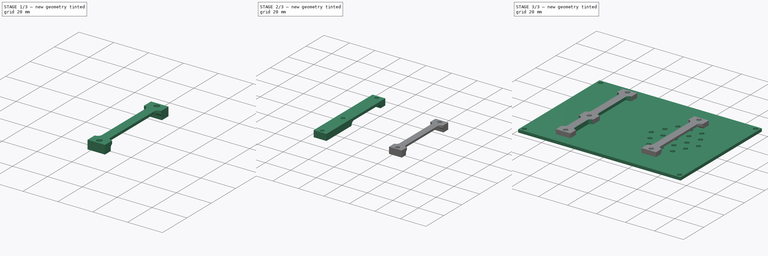
[diagram: build sequence overview — one tinted view per stage of 3, left to right]
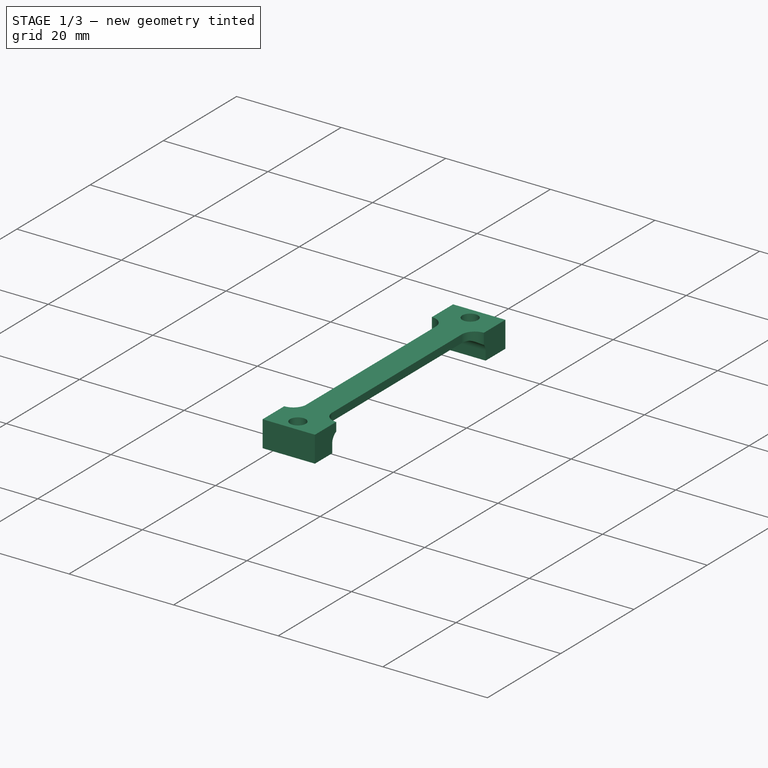
[diagram: stage 1 of 3 — iso view after this stage's code; geometry added in this stage tinted green]
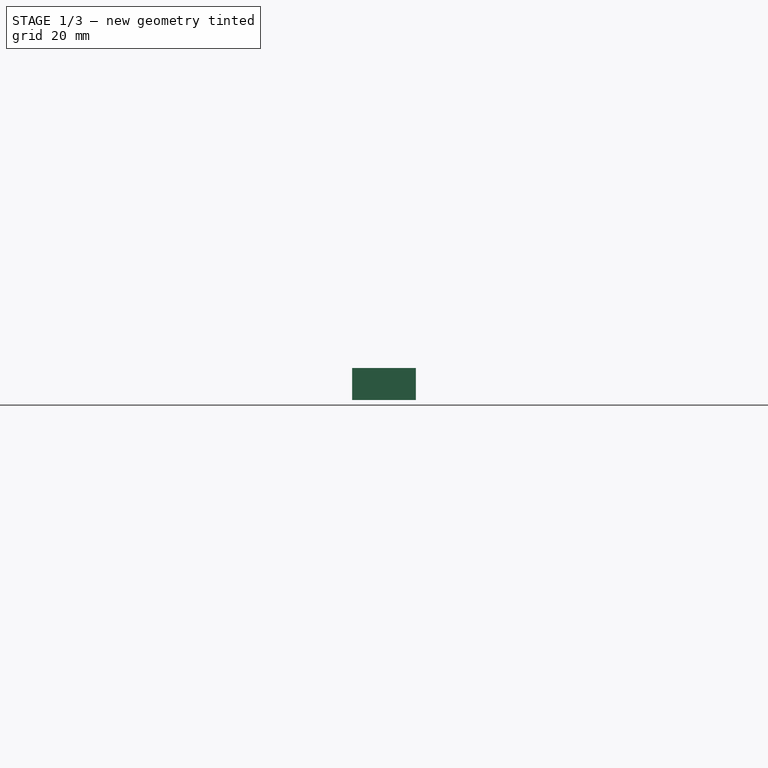
[diagram: stage 1 of 3 — front view after this stage's code; geometry added in this stage tinted green]
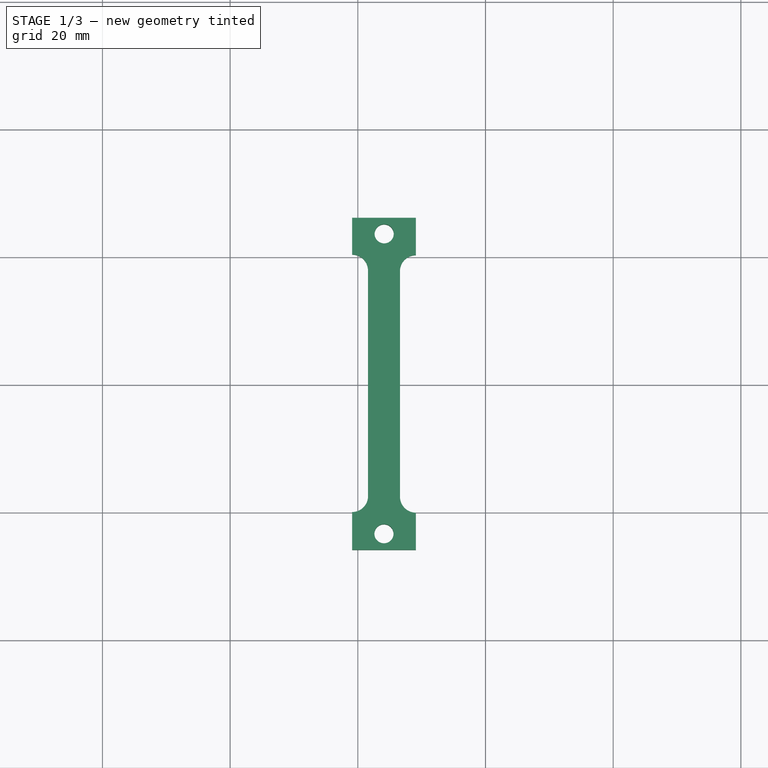
[diagram: stage 1 of 3 — top view after this stage's code; geometry added in this stage tinted green]
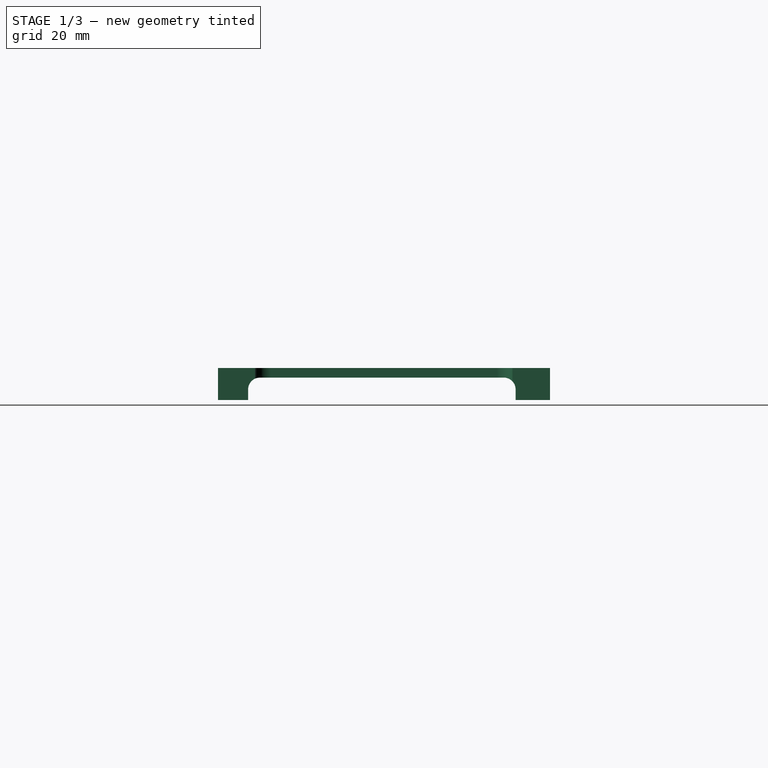
[diagram: stage 1 of 3 — right view after this stage's code; geometry added in this stage tinted green]
FCSTD DOCUMENT  (FreeCAD 0.18R16131 (Git))
Label: horloge boite
License: All rights reserved
LicenseURL: http://en.wikipedia.org/wiki/All_rights_reserved
objects: Sketcher::SketchObject×10, PartDesign::Pad×4, PartDesign::Plane×4, PartDesign::Pocket×4, PartDesign::Body×3
note: 33 computed .brp shape members not serialized (recipe doc carries the construction recipe); baked Part::Feature solids carry a one-line shape summary decoded from their .brp

FEATURE [PartDesign::Body] Body001  label="Serrage"
  Group = -> [Sketch004,Pad002,DatumPlane,Sketch005,Pocket,DatumPlane001,Sketch006,Pocket001]
  Origin = -> Origin001
  Placement = pos=(0,0,4) rot=(0,0,1;0rad)
  Tip = -> Pocket001
FEATURE [Sketcher::SketchObject] Sketch007
  MapMode = 5
  Support = -> [XY_Plane002]
  sketch-geometry (6):
    g0: LineSegment StartX=19.1 StartY=26.1584 StartZ=0 EndX=29.1 EndY=26.1584 EndZ=0
    g1: LineSegment StartX=29.1 StartY=26.1584 StartZ=0 EndX=29.1 EndY=-25.8416 EndZ=0
    g2: LineSegment StartX=29.1 StartY=-25.8416 StartZ=0 EndX=19.1 EndY=-25.8416 EndZ=0
    g3: LineSegment StartX=19.1 StartY=-25.8416 StartZ=0 EndX=19.1 EndY=26.1584 EndZ=0
    g4: Circle CenterX=24.1247 CenterY=23.6472 CenterZ=0 NormalX=0 NormalY=0 NormalZ=1 AngleXU=0 Radius=1.5
    g5: Circle CenterX=24.0947 CenterY=-23.3311 CenterZ=0 NormalX=0 NormalY=0 NormalZ=1 AngleXU=0 Radius=1.5
  constraints (13):
    c: Coincident(g0,g1)
    c: Coincident(g1,g2)
    c: Coincident(g2,g3)
    c: Coincident(g3,g0)
    c: Horizontal(g0)
    c: Horizontal(g2)
    c: Vertical(g1)
    c: Vertical(g3)
    c: DistanceX(g0,g0) = 10
    c: DistanceX(g-1,g0) = 19.1
    c: DistanceY(g1,g1) = 52
    c: Diameter(g4) = 3
    c: Equal(g4,g5) = 3
FEATURE [PartDesign::Pad] Pad003
  Length = 5
  Length2 = 100
  Profile = -> Sketch007
  Type = 0
FEATURE [PartDesign::Plane] DatumPlane002
  Length = 58.4498
  MapMode = 5
  Placement = pos=(19.1,0,0) rot=(0.57735,-0.57735,-0.57735;2.0944rad)
  ResizeMode = 0
  Support = -> [Pad003]
  Width = 26.4498
FEATURE [Sketcher::SketchObject] Sketch008
  MapMode = 5
  Placement = pos=(19.1,0,0) rot=(0.57735,-0.57735,-0.57735;2.0944rad)
  Support = -> [DatumPlane002]
  sketch-geometry (6):
    g0: LineSegment StartX=-18.9232 StartY=3.5 StartZ=0 EndX=19.2728 EndY=3.5 EndZ=0
    g1: LineSegment StartX=21.1253 StartY=1.64752 StartZ=0 EndX=21.1253 EndY=0 EndZ=0
    g2: LineSegment StartX=21.1253 StartY=0 StartZ=0 EndX=-20.7747 EndY=0 EndZ=0
    g3: LineSegment StartX=-20.7747 StartY=0 StartZ=0 EndX=-20.7747 EndY=1.6485 EndZ=0
    g4: ArcOfCircle CenterX=-18.9232 CenterY=1.6485 CenterZ=0 NormalX=0 NormalY=0 NormalZ=1 AngleXU=0 Radius=1.8515 StartAngle=1.5708 EndAngle=3.14159
    g5: ArcOfCircle CenterX=19.2728 CenterY=1.64752 CenterZ=0 NormalX=0 NormalY=0 NormalZ=1 AngleXU=0 Radius=1.85248 StartAngle=-1.004e-13 EndAngle=1.5708
  constraints (13):
    c: Coincident(g1,g2)
    c: Coincident(g2,g3)
    c: Horizontal(g0)
    c: Horizontal(g2)
    c: Vertical(g1)
    c: Vertical(g3)
    c: PointOnObject(g-1,g2)
    c: DistanceX(g2,g2) = 41.9
    c: Tangent(g0,g4) = 1.5708
    c: Tangent(g3,g4) = 1.5708
    c: Tangent(g0,g5) = 1.5708
    c: Tangent(g1,g5) = 1.5708
    c: DistanceY(g1,g0) = 3.5
FEATURE [PartDesign::Pocket] Pocket002
  BaseFeature = -> Pad003
  Length = 5
  Length2 = 100
  Profile = -> Sketch008
  Type = 1
FEATURE [PartDesign::Plane] DatumPlane003
  Length = 48.1182
  MapMode = 5
  Placement = pos=(0,0,5) rot=(0,0,1;0rad)
  ResizeMode = 0
  Support = -> [Pocket002]
  Width = 61.0182
FEATURE [Sketcher::SketchObject] Sketch009
  MapMode = 5
  Placement = pos=(0,0,5) rot=(0,0,1;0rad)
  Support = -> [DatumPlane003]
  sketch-geometry (10):
    g0: ArcOfCircle CenterX=19.1 CenterY=17.8795 CenterZ=0 NormalX=0 NormalY=0 NormalZ=1 AngleXU=0 Radius=2.5 StartAngle=2e-16 EndAngle=3.14159
    g1: ArcOfCircle CenterX=19.1 CenterY=-17.4462 CenterZ=0 NormalX=0 NormalY=0 NormalZ=1 AngleXU=0 Radius=2.5 StartAngle=3.14159 EndAngle=6.28319
    g2: LineSegment StartX=16.6 StartY=17.8795 StartZ=0 EndX=16.6 EndY=-17.4462 EndZ=0
    g3: LineSegment StartX=21.6 StartY=17.8795 StartZ=0 EndX=21.6 EndY=-17.4462 EndZ=0
    g4: LineSegment [constr] StartX=19.1 StartY=30.4729 StartZ=0 EndX=19.1 EndY=-27.6405 EndZ=0
    g5: LineSegment [constr] StartX=29.1 StartY=34.9332 StartZ=0 EndX=29.1 EndY=-28.2579 EndZ=0
    g6: ArcOfCircle CenterX=29.1 CenterY=17.7889 CenterZ=0 NormalX=0 NormalY=0 NormalZ=1 AngleXU=0 Radius=2.5 StartAngle=2e-16 EndAngle=3.14159
    g7: ArcOfCircle CenterX=29.1 CenterY=-17.5368 CenterZ=0 NormalX=0 NormalY=0 NormalZ=1 AngleXU=0 Radius=2.5 StartAngle=3.14159 EndAngle=6.28319
    g8: LineSegment StartX=26.6 StartY=17.7889 StartZ=0 EndX=26.6 EndY=-17.5368 EndZ=0
    g9: LineSegment StartX=31.6 StartY=17.7889 StartZ=0 EndX=31.6 EndY=-17.5368 EndZ=0
  constraints (20):
    c: Tangent(g0,g3) = 1.5708
    c: Tangent(g0,g2) = -1.5708
    c: Tangent(g2,g1) = -1.5708
    c: Tangent(g3,g1) = 1.5708
    c: Vertical(g2)
    c: Equal(g0,g1)
    c: DistanceX(g0,g0) = 5
    c: Vertical(g4)
    c: DistanceX(g-1,g4) = 19.1
    c: Vertical(g5)
    c: DistanceX(g4,g5) = 10
    c: PointOnObject(g0,g4)
    c: Tangent(g6,g9) = 1.5708
    c: Tangent(g6,g8) = -1.5708
    c: Tangent(g8,g7) = -1.5708
    c: Tangent(g9,g7) = 1.5708
    c: Vertical(g8)
    c: Equal(g6,g7)
    c: Equal(g0,g6) = 5
    c: PointOnObject(g6,g5)
FEATURE [PartDesign::Pocket] Pocket003
  BaseFeature = -> Pocket002
  Length = 5
  Length2 = 100
  Profile = -> Sketch009
  Type = 1
FEATURE [PartDesign::Body] Body002  label="serage 2"
  Group = -> [Sketch007,Pad003,DatumPlane002,Sketch008,Pocket002,DatumPlane003,Sketch009,Pocket003]
  Origin = -> Origin002
  Placement = pos=(0,0,4) rot=(0,0,1;0rad)
  Tip = -> Pocket003
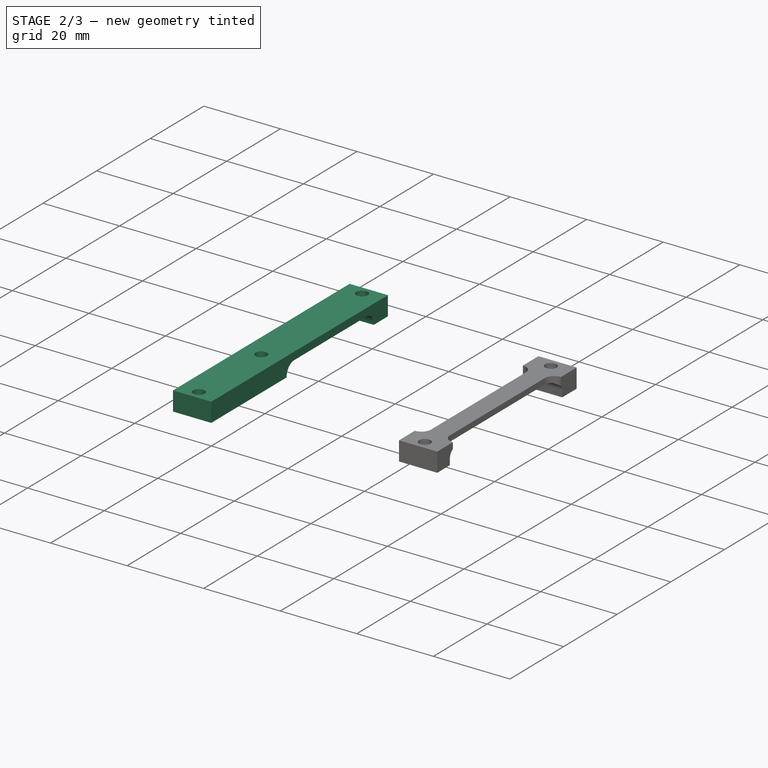
[diagram: stage 2 of 3 — iso view after this stage's code; geometry added in this stage tinted green]
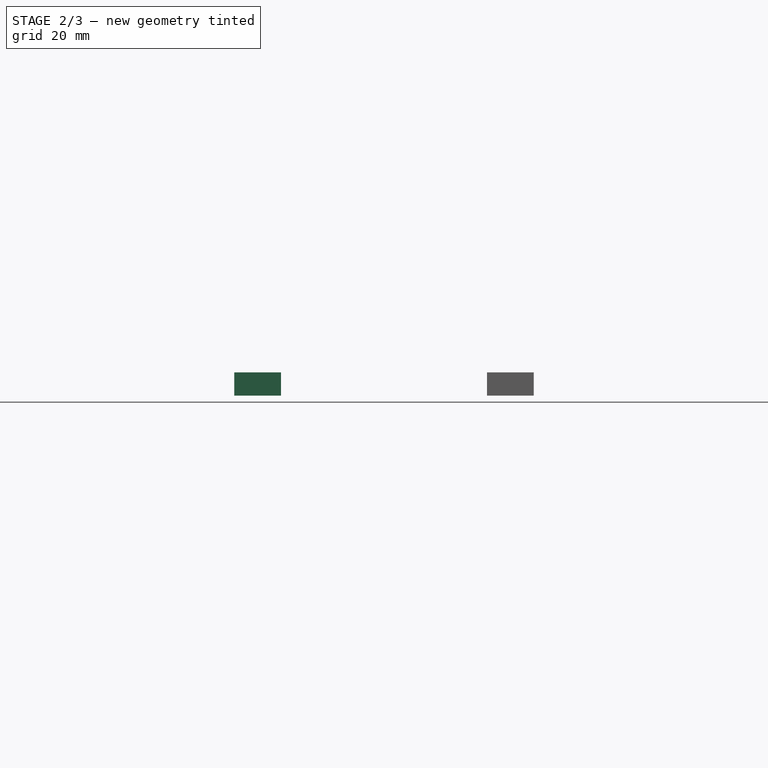
[diagram: stage 2 of 3 — front view after this stage's code; geometry added in this stage tinted green]
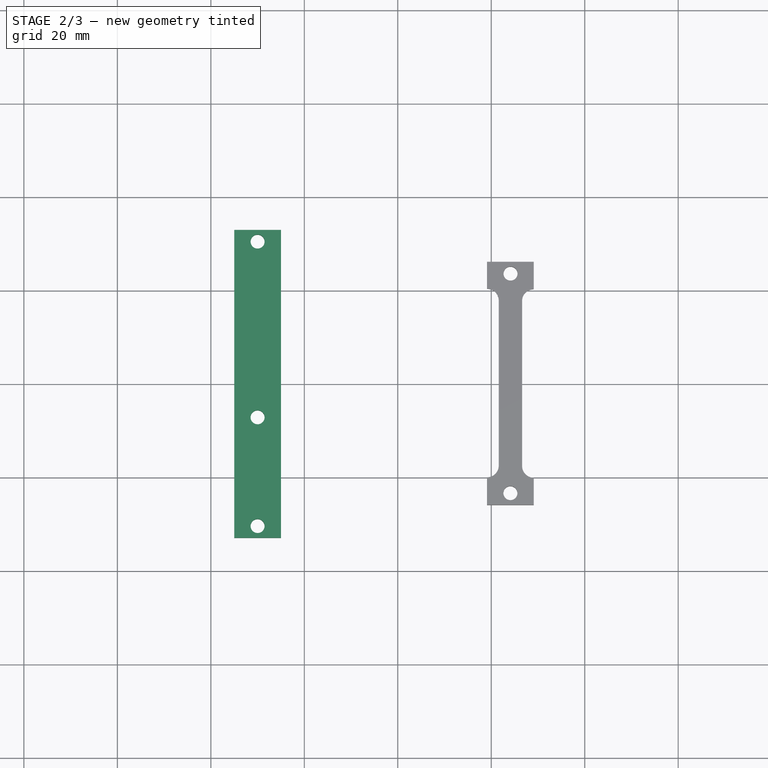
[diagram: stage 2 of 3 — top view after this stage's code; geometry added in this stage tinted green]
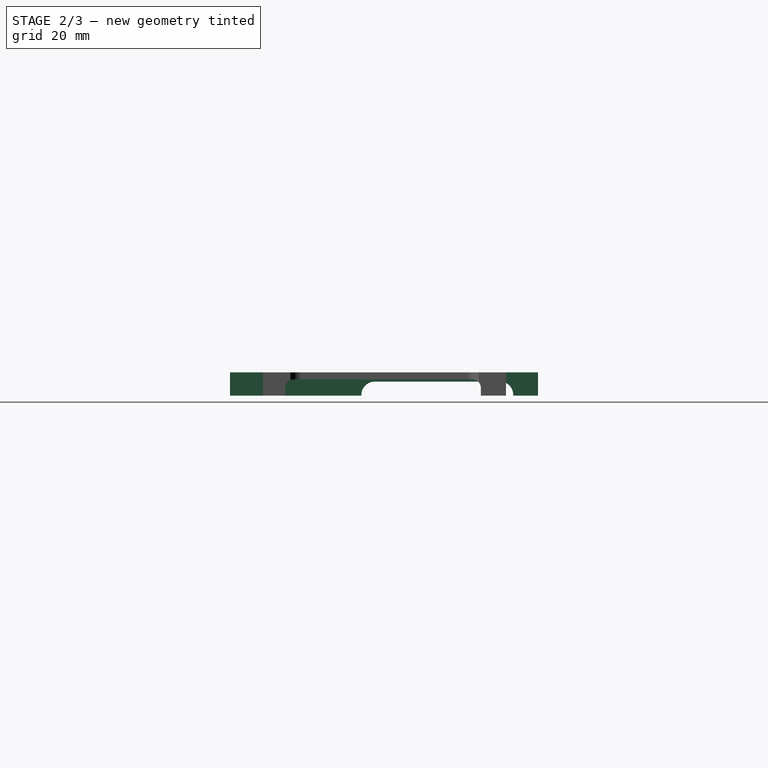
[diagram: stage 2 of 3 — right view after this stage's code; geometry added in this stage tinted green]
FEATURE [Sketcher::SketchObject] Sketch002
  AttachmentOffset = pos=(0,0,2) rot=(0,0,1;0rad)
  MapMode = 5
  Placement = pos=(0,0,2) rot=(0,0,1;0rad)
  Support = -> [XY_Plane]
  sketch-geometry (4):
    g0: LineSegment StartX=-51 StartY=34.5 StartZ=0 EndX=51 EndY=34.5 EndZ=0
    g1: LineSegment StartX=51 StartY=34.5 StartZ=0 EndX=51 EndY=-34.5 EndZ=0
    g2: LineSegment StartX=51 StartY=-34.5 StartZ=0 EndX=-51 EndY=-34.5 EndZ=0
    g3: LineSegment StartX=-51 StartY=-34.5 StartZ=0 EndX=-51 EndY=34.5 EndZ=0
  constraints (10):
    c: Coincident(g0,g1)
    c: Coincident(g1,g2)
    c: Coincident(g2,g3)
    c: Coincident(g3,g0)
    c: Horizontal(g2)
    c: Vertical(g3)
    c: DistanceX(g0,g0) = 102
    c: DistanceY(g1,g1) = 69
    c: Symmetric(g0,g0,g-2)
    c: Symmetric(g0,g1,g-1)
FEATURE [Sketcher::SketchObject] Sketch003  label="elements"
  AttachmentOffset = pos=(0,0,2) rot=(0,0,1;0rad)
  MapMode = 5
  Placement = pos=(0,0,2) rot=(0,0,1;0rad)
  Support = -> [XY_Plane]
  sketch-geometry (9):
    g0: LineSegment StartX=-37.9856 StartY=-10.0155 StartZ=0 EndX=-17.9856 EndY=-10.0155 EndZ=0
    g1: LineSegment StartX=-17.9856 StartY=-10.0155 StartZ=0 EndX=-17.9856 EndY=-27.0155 EndZ=0
    g2: LineSegment StartX=-17.9856 StartY=-27.0155 StartZ=0 EndX=-37.9856 EndY=-27.0155 EndZ=0
    g3: LineSegment StartX=-37.9856 StartY=-27.0155 StartZ=0 EndX=-37.9856 EndY=-10.0155 EndZ=0
    g4: LineSegment StartX=-49.1089 StartY=27.4845 StartZ=0 EndX=-9.10894 EndY=27.4845 EndZ=0
    g5: LineSegment StartX=-9.10894 StartY=27.4845 StartZ=0 EndX=-9.10894 EndY=-4.01552 EndZ=0
    g6: LineSegment StartX=-9.10894 StartY=-4.01552 StartZ=0 EndX=-49.1089 EndY=-4.01552 EndZ=0
    g7: LineSegment StartX=-49.1089 StartY=-4.01552 StartZ=0 EndX=-49.1089 EndY=27.4845 EndZ=0
    g8: Circle CenterX=23.8642 CenterY=0 CenterZ=0 NormalX=0 NormalY=0 NormalZ=1 AngleXU=0 Radius=20
  constraints (23):
    c: Coincident(g0,g1)
    c: Coincident(g1,g2)
    c: Coincident(g2,g3)
    c: Coincident(g3,g0)
    c: Horizontal(g0)
    c: Horizontal(g2)
    c: Vertical(g1)
    c: Vertical(g3)
    c: DistanceX(g0,g0) = 20
    c: DistanceY(g1,g1) = 17
    c: Coincident(g4,g5)
    c: Coincident(g5,g6)
    c: Coincident(g6,g7)
    c: Coincident(g7,g4)
    c: Horizontal(g4)
    c: Horizontal(g6)
    c: Vertical(g5)
    c: Vertical(g7)
    c: DistanceX(g4,g4) = 40
    c: DistanceY(g5,g5) = 31.5
    c: Diameter(g8) = 40
    c: PointOnObject(g8,g-1)
    c: DistanceY(g0,g5) = 6
FEATURE [PartDesign::Body] Body
  Group = -> [Sketch,Pad,Sketch001,Pad001,Sketch002,Sketch003]
  Origin = -> Origin
  Tip = -> Pad001
FEATURE [Sketcher::SketchObject] Sketch004
  MapMode = 5
  Support = -> [XY_Plane001]
  sketch-geometry (8):
    g0: LineSegment StartX=-35 StartY=32.9929 StartZ=0 EndX=-25 EndY=32.9929 EndZ=0
    g1: LineSegment StartX=-25 StartY=32.9929 StartZ=0 EndX=-25 EndY=-32.8858 EndZ=0
    g2: LineSegment StartX=-25 StartY=-32.8858 StartZ=0 EndX=-35 EndY=-32.8858 EndZ=0
    g3: LineSegment StartX=-35 StartY=-32.8858 StartZ=0 EndX=-35 EndY=32.9929 EndZ=0
    g4: Circle CenterX=-30 CenterY=30.4929 CenterZ=0 NormalX=0 NormalY=0 NormalZ=1 AngleXU=0 Radius=1.5
    g5: Circle CenterX=-30 CenterY=-7.10542 CenterZ=0 NormalX=0 NormalY=0 NormalZ=1 AngleXU=0 Radius=1.5
    g6: LineSegment [constr] StartX=-30 StartY=45.8495 StartZ=0 EndX=-30 EndY=-41.5599 EndZ=0
    g7: Circle CenterX=-30 CenterY=-30.3742 CenterZ=0 NormalX=0 NormalY=0 NormalZ=1 AngleXU=0 Radius=1.5
  constraints (19):
    c: Coincident(g0,g1)
    c: Coincident(g1,g2)
    c: Coincident(g2,g3)
    c: Coincident(g3,g0)
    c: Horizontal(g0)
    c: Horizontal(g2)
    c: Vertical(g1)
    c: Vertical(g3)
    c: DistanceX(g0,g0) = 10
    c: Diameter(g4) = 3
    c: DistanceX(g0,g4) = 5
    c: DistanceY(g4,g0) = 2.5
    c: Equal(g4,g5) = 3
    c: Vertical(g6)
    c: PointOnObject(g4,g6)
    c: PointOnObject(g5,g6)
    c: DistanceX(g0,g-1) = 25
    c: PointOnObject(g7,g6)
    c: Diameter(g7) = 3
FEATURE [PartDesign::Pad] Pad002
  Length = 5
  Length2 = 100
  Profile = -> Sketch004
  Type = 0
FEATURE [PartDesign::Plane] DatumPlane
  Length = 73.1384
  MapMode = 5
  Placement = pos=(-35,0,0) rot=(0.57735,-0.57735,-0.57735;2.0944rad)
  ResizeMode = 0
  Support = -> [Pad002]
  Width = 27.2597
FEATURE [Sketcher::SketchObject] Sketch005
  MapMode = 5
  Placement = pos=(-35,0,0) rot=(0.57735,-0.57735,-0.57735;2.0944rad)
  Support = -> [DatumPlane]
  sketch-geometry (7):
    g0: LineSegment StartX=-27.7 StartY=0 StartZ=0 EndX=4.8 EndY=0 EndZ=0
    g1: LineSegment StartX=4.8 StartY=0 StartZ=0 EndX=4.8 EndY=0.12222 EndZ=0
    g2: LineSegment StartX=1.92222 StartY=3 StartZ=0 EndX=-15.562 EndY=3 EndZ=0
    g3: ArcOfCircle CenterX=1.92222 CenterY=0.12222 CenterZ=0 NormalX=0 NormalY=0 NormalZ=1 AngleXU=0 Radius=2.87778 StartAngle=0 EndAngle=1.5708
    g4: LineSegment StartX=-27.7 StartY=0 StartZ=0 EndX=-27.7 EndY=0.2011 EndZ=0
    g5: LineSegment StartX=-24.9011 StartY=3 StartZ=0 EndX=-15.562 EndY=3 EndZ=0
    g6: ArcOfCircle CenterX=-24.9011 CenterY=0.2011 CenterZ=0 NormalX=0 NormalY=0 NormalZ=1 AngleXU=0 Radius=2.7989 StartAngle=1.5708 EndAngle=3.14159
  constraints (16):
    c: Coincident(g0,g1)
    c: Horizontal(g0)
    c: Horizontal(g2)
    c: Vertical(g1)
    c: PointOnObject(g0,g-1)
    c: Tangent(g2,g3) = -1.5708
    c: Tangent(g1,g3) = -1.5708
    c: DistanceY(g0,g2) = 3
    c: DistanceX(g-1,g0) = 4.8
    c: DistanceX(g0,g-1) = 27.7
    c: Coincident(g0,g4)
    c: Vertical(g4)
    c: Horizontal(g5)
    c: Coincident(g5,g2)
    c: Tangent(g5,g6) = 1.5708
    c: Tangent(g4,g6) = 1.5708
FEATURE [PartDesign::Pocket] Pocket
  BaseFeature = -> Pad002
  Length = 5
  Length2 = 100
  Profile = -> Sketch005
  Type = 1
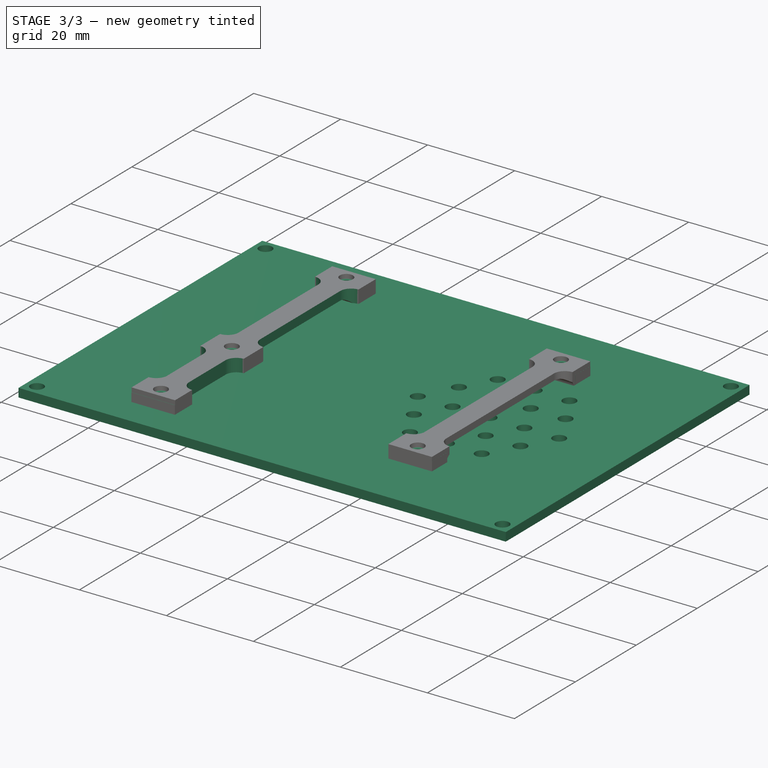
[diagram: stage 3 of 3 — iso view after this stage's code; geometry added in this stage tinted green]
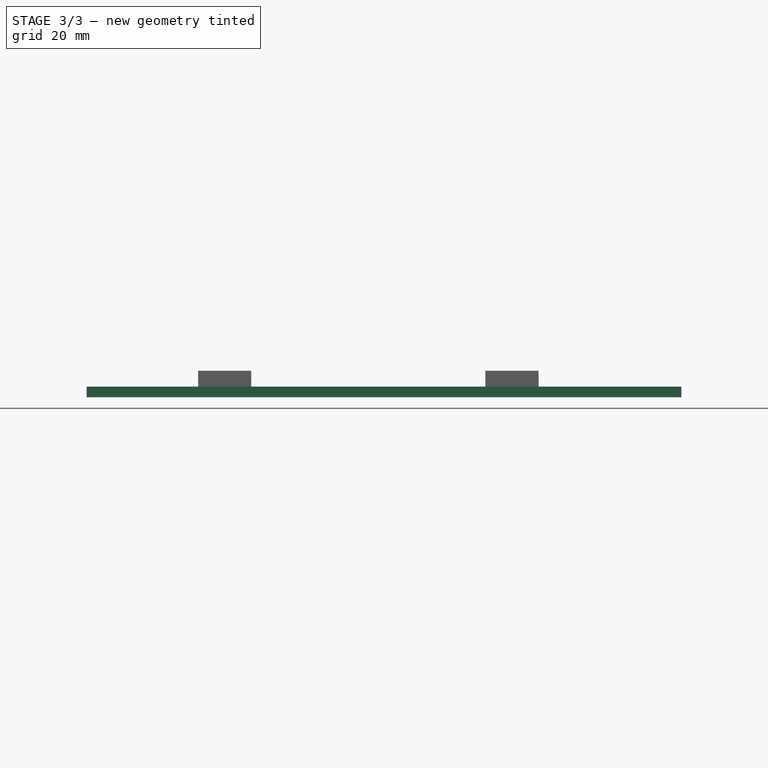
[diagram: stage 3 of 3 — front view after this stage's code; geometry added in this stage tinted green]
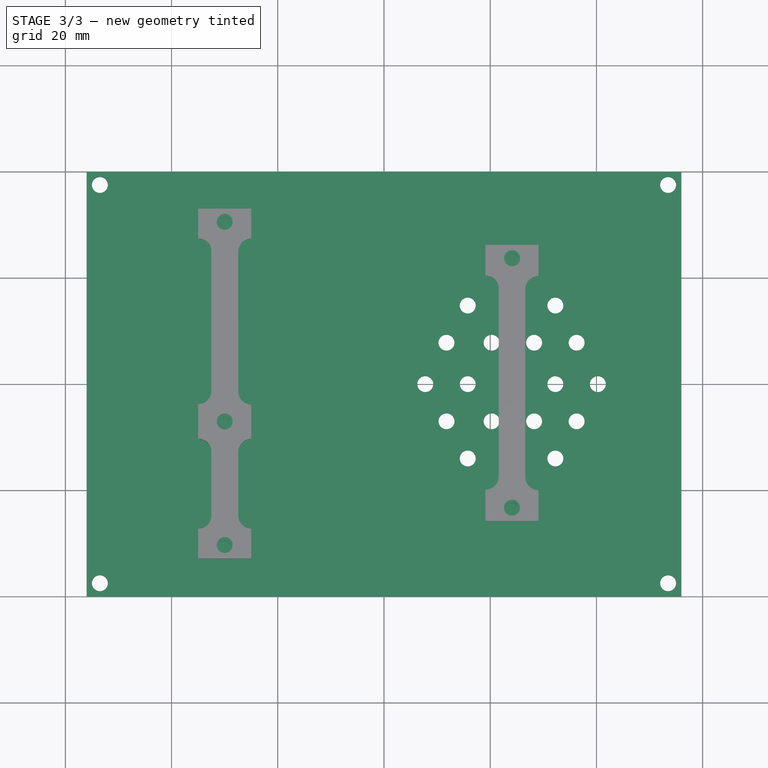
[diagram: stage 3 of 3 — top view after this stage's code; geometry added in this stage tinted green]
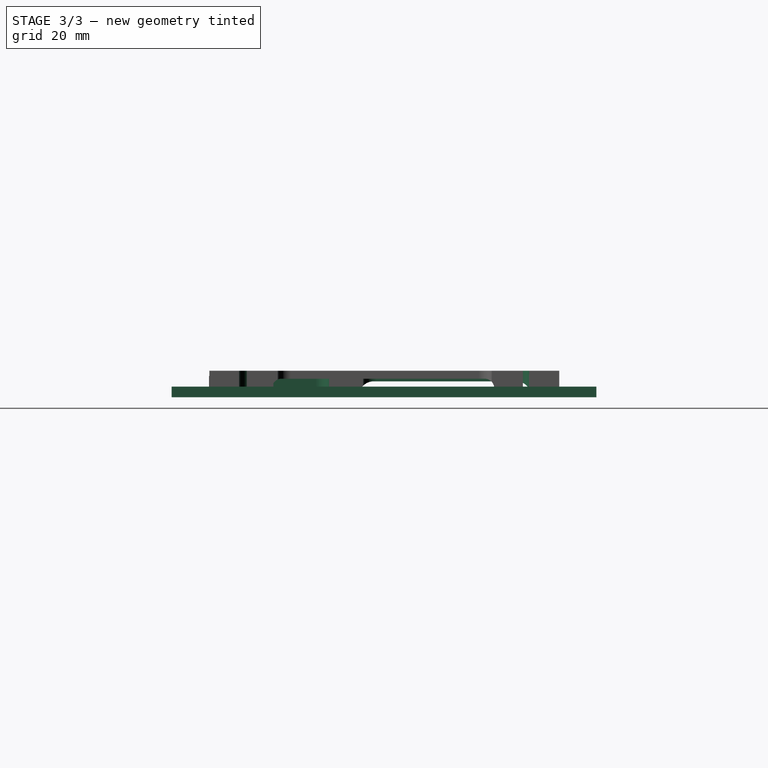
[diagram: stage 3 of 3 — right view after this stage's code; geometry added in this stage tinted green]
FEATURE [Sketcher::SketchObject] Sketch  label="fond"
  MapMode = 5
  Support = -> [XY_Plane]
  sketch-geometry (40):
    g0: LineSegment StartX=-56 StartY=40 StartZ=0 EndX=56 EndY=40 EndZ=0
    g1: LineSegment StartX=56 StartY=40 StartZ=0 EndX=56 EndY=-40 EndZ=0
    g2: LineSegment StartX=56 StartY=-40 StartZ=0 EndX=-56 EndY=-40 EndZ=0
    g3: LineSegment StartX=-56 StartY=-40 StartZ=0 EndX=-56 EndY=40 EndZ=0
    g4: Circle CenterX=-53.5 CenterY=37.5 CenterZ=0 NormalX=0 NormalY=0 NormalZ=1 AngleXU=0 Radius=1.5
    g5: Circle CenterX=53.5 CenterY=37.5 CenterZ=0 NormalX=0 NormalY=0 NormalZ=1 AngleXU=0 Radius=1.5
    g6: Circle CenterX=-53.5 CenterY=-37.5 CenterZ=0 NormalX=0 NormalY=0 NormalZ=1 AngleXU=0 Radius=1.5
    g7: Circle CenterX=53.5 CenterY=-37.5 CenterZ=0 NormalX=0 NormalY=0 NormalZ=1 AngleXU=0 Radius=1.5
    g8: Circle CenterX=7.76807 CenterY=0 CenterZ=0 NormalX=0 NormalY=0 NormalZ=1 AngleXU=0 Radius=1.5
    g9: Circle CenterX=15.7681 CenterY=0 CenterZ=0 NormalX=0 NormalY=0 NormalZ=1 AngleXU=0 Radius=1.5
    g10: Circle CenterX=32.2681 CenterY=0 CenterZ=0 NormalX=0 NormalY=0 NormalZ=1 AngleXU=0 Radius=1.5
    g11: Circle CenterX=24.2681 CenterY=0 CenterZ=0 NormalX=0 NormalY=0 NormalZ=1 AngleXU=0 Radius=1.5
    g12: Circle CenterX=40.2681 CenterY=0 CenterZ=0 NormalX=0 NormalY=0 NormalZ=1 AngleXU=0 Radius=1.5
    g13: Circle CenterX=36.2681 CenterY=7.8 CenterZ=0 NormalX=0 NormalY=0 NormalZ=1 AngleXU=0 Radius=1.5
    g14: Circle CenterX=11.7681 CenterY=7.8 CenterZ=0 NormalX=0 NormalY=0 NormalZ=1 AngleXU=0 Radius=1.5
    g15: Circle CenterX=28.2681 CenterY=7.8 CenterZ=0 NormalX=0 NormalY=0 NormalZ=1 AngleXU=0 Radius=1.5
    g16: Circle CenterX=20.2681 CenterY=7.8 CenterZ=0 NormalX=0 NormalY=0 NormalZ=1 AngleXU=0 Radius=1.5
    g17: Circle CenterX=32.2681 CenterY=14.8 CenterZ=0 NormalX=0 NormalY=0 NormalZ=1 AngleXU=0 Radius=1.5
    g18: Circle CenterX=24.2681 CenterY=14.8 CenterZ=0 NormalX=0 NormalY=0 NormalZ=1 AngleXU=0 Radius=1.5
    g19: Circle CenterX=15.7681 CenterY=14.8 CenterZ=0 NormalX=0 NormalY=0 NormalZ=1 AngleXU=0 Radius=1.5
    g20: LineSegment [constr] StartX=1.54998 StartY=14.8 StartZ=0 EndX=51.053 EndY=14.8 EndZ=0
    g21: LineSegment [constr] StartX=1.97399 StartY=7.8 StartZ=0 EndX=50.735 EndY=7.8 EndZ=0
    g22: Circle CenterX=36.2681 CenterY=-7 CenterZ=0 NormalX=0 NormalY=0 NormalZ=1 AngleXU=0 Radius=1.5
    g23: Circle CenterX=11.7681 CenterY=-7 CenterZ=0 NormalX=0 NormalY=0 NormalZ=1 AngleXU=0 Radius=1.5
    g24: Circle CenterX=28.2681 CenterY=-7 CenterZ=0 NormalX=0 NormalY=0 NormalZ=1 AngleXU=0 Radius=1.5
    g25: Circle CenterX=20.2681 CenterY=-7 CenterZ=0 NormalX=0 NormalY=0 NormalZ=1 AngleXU=0 Radius=1.5
    g26: LineSegment [constr] StartX=1.33798 StartY=-7 StartZ=0 EndX=50.0989 EndY=-7 EndZ=0
    g27: Circle CenterX=32.2681 CenterY=-14 CenterZ=0 NormalX=0 NormalY=0 NormalZ=1 AngleXU=0 Radius=1.5
    g28: Circle CenterX=24.2681 CenterY=-14 CenterZ=0 NormalX=0 NormalY=0 NormalZ=1 AngleXU=0 Radius=1.5
    g29: Circle CenterX=15.7681 CenterY=-14 CenterZ=0 NormalX=0 NormalY=0 NormalZ=1 AngleXU=0 Radius=1.5
    g30: LineSegment [constr] StartX=1.12597 StartY=-14 StartZ=0 EndX=50.629 EndY=-14 EndZ=0
    g31: LineSegment [constr] StartX=11.7681 StartY=25.2293 StartZ=0 EndX=11.7681 EndY=-26.9237 EndZ=0
    g32: LineSegment [constr] StartX=15.7681 StartY=26.1833 StartZ=0 EndX=15.7681 EndY=-27.1357 EndZ=0
    g33: LineSegment [constr] StartX=20.2681 StartY=26.0773 StartZ=0 EndX=20.2681 EndY=-27.7718 EndZ=0
    g34: LineSegment [constr] StartX=24.2681 StartY=25.9294 StartZ=0 EndX=24.2681 EndY=-28.2858 EndZ=0
    g35: LineSegment [constr] StartX=28.2681 StartY=26.2703 StartZ=0 EndX=28.2681 EndY=-27.8739 EndZ=0
    g36: LineSegment [constr] StartX=32.2681 StartY=25.5153 StartZ=0 EndX=32.2681 EndY=-28.1315 EndZ=0
    g37: LineSegment [constr] StartX=36.2681 StartY=25.9151 StartZ=0 EndX=36.2681 EndY=-27.8739 EndZ=0
    g38: LineSegment [constr] StartX=7.76807 StartY=25.371 StartZ=0 EndX=7.76807 EndY=-26.0731 EndZ=0
    g39: LineSegment [constr] StartX=40.2681 StartY=24.3052 StartZ=0 EndX=40.2681 EndY=-29.1285 EndZ=0
  constraints (93):
    c: Coincident(g0,g1)
    c: Coincident(g1,g2)
    c: Coincident(g2,g3)
    c: Coincident(g3,g0)
    c: Horizontal(g2)
    c: Vertical(g3)
    c: DistanceY(g3,g3) = 80
    c: DistanceX(g0,g0) = 112
    c: Symmetric(g0,g0,g-2)
    c: Symmetric(g0,g1,g-1)
    c: Diameter(g4) = 3
    c: DistanceX(g0,g4) = 2.5
    c: DistanceY(g4,g0) = 2.5
    c: Equal(g4,g5) = 3
    c: Symmetric(g5,g4,g-2)
    c: Equal(g4,g6) = 3
    c: Symmetric(g6,g4,g-1)
    c: Equal(g4,g7) = 3
    c: Symmetric(g7,g6,g-2)
    c: Diameter(g8) = 3
    c: Equal(g8,g9) = 3
    c: Equal(g8,g10) = 3
    c: Equal(g10,g11) = 3
    c: Equal(g8,g12) = 3
    c: PointOnObject(g12,g-1)
    c: Equal(g15,g16) = 3
    c: Equal(g18,g19) = 3
    c: Horizontal(g20)
    c: Horizontal(g21)
    c: DistanceY(g-1,g21) = 7.8
    c: DistanceY(g21,g20) = 7
    c: PointOnObject(g19,g20)
    c: PointOnObject(g18,g20)
    c: PointOnObject(g17,g20)
    c: PointOnObject(g14,g21)
    c: PointOnObject(g16,g21)
    c: PointOnObject(g15,g21)
    c: PointOnObject(g13,g21)
    c: PointOnObject(g8,g-1)
    c: PointOnObject(g9,g-1)
    c: PointOnObject(g11,g-1)
    c: PointOnObject(g10,g-1)
    c: Equal(g24,g25) = 3
    c: Horizontal(g26)
    c: PointOnObject(g23,g26)
    c: PointOnObject(g25,g26)
    c: PointOnObject(g24,g26)
    c: PointOnObject(g22,g26)
    c: DistanceY(g26,g-1) = 7
    c: Equal(g28,g29) = 3
    c: Horizontal(g30)
    c: PointOnObject(g29,g30)
    c: DistanceY(g30,g26) = 7
    c: Vertical(g31)
    c: Vertical(g32)
    c: Vertical(g33)
    c: PointOnObject(g14,g31)
    c: PointOnObject(g19,g32)
    c: PointOnObject(g9,g32)
    c: PointOnObject(g29,g32)
    c: PointOnObject(g16,g33)
    c: PointOnObject(g25,g33)
    c: Diameter(g29) = 3
    c: Vertical(g34)
    c: PointOnObject(g11,g34)
    c: PointOnObject(g28,g30)
    c: PointOnObject(g28,g34)
    c: Vertical(g35)
    c: Vertical(g36)
    c: Vertical(g37)
    c: PointOnObject(g18,g34)
    c: PointOnObject(g15,g35)
    c: PointOnObject(g24,g35)
    c: PointOnObject(g27,g30)
    c: PointOnObject(g27,g36)
    c: PointOnObject(g10,g36)
    c: Diameter(g27) = 3
    c: PointOnObject(g22,g37)
    c: Vertical(g38)
    c: Vertical(g39)
    c: PointOnObject(g8,g38)
    c: PointOnObject(g12,g39)
    c: DistanceX(g38,g31) = 4
    c: DistanceX(g31,g32) = 4
    c: DistanceX(g32,g33) = 4.5
    c: DistanceX(g33,g34) = 4
    c: DistanceX(g34,g35) = 4
    c: DistanceX(g35,g36) = 4
    c: DistanceX(g36,g37) = 4
    c: DistanceX(g37,g39) = 4
    c: PointOnObject(g13,g37)
    c: PointOnObject(g17,g36)
    c: PointOnObject(g23,g31)
FEATURE [PartDesign::Pad] Pad  label="fond_pad"
  Length = 2
  Length2 = 100
  Profile = -> Sketch
  Type = 0
FEATURE [Sketcher::SketchObject] Sketch001  label="esp support"
  AttachmentOffset = pos=(0,0,2) rot=(0,0,1;0rad)
  ExternalGeometry = -> [Sketch]
  MapMode = 5
  Placement = pos=(0,0,2) rot=(0,0,1;0rad)
  Support = -> [XY_Plane]
  sketch-geometry (28):
    g0: LineSegment StartX=-35 StartY=33 StartZ=0 EndX=-25 EndY=33 EndZ=0
    g1: LineSegment StartX=-25 StartY=33 StartZ=0 EndX=-25 EndY=28 EndZ=0
    g2: LineSegment StartX=-25 StartY=28 StartZ=0 EndX=-35 EndY=28 EndZ=0
    g3: LineSegment StartX=-35 StartY=28 StartZ=0 EndX=-35 EndY=33 EndZ=0
    g4: LineSegment [constr] StartX=-74.9335 StartY=11.5 StartZ=0 EndX=72.9241 EndY=11.5 EndZ=0
    g5: Circle CenterX=-30 CenterY=30.5 CenterZ=0 NormalX=0 NormalY=0 NormalZ=1 AngleXU=0 Radius=1
    g6: LineSegment StartX=-35 StartY=-4.70651 StartZ=0 EndX=-25 EndY=-4.70651 EndZ=0
    g7: LineSegment StartX=-25 StartY=-4.70651 StartZ=0 EndX=-25 EndY=-9.70651 EndZ=0
    g8: LineSegment StartX=-25 StartY=-9.70651 StartZ=0 EndX=-35 EndY=-9.70651 EndZ=0
    g9: LineSegment StartX=-35 StartY=-9.70651 StartZ=0 EndX=-35 EndY=-4.70651 EndZ=0
    g10: Circle CenterX=-30 CenterY=-7.20651 CenterZ=0 NormalX=0 NormalY=0 NormalZ=1 AngleXU=0 Radius=1
    g11: LineSegment StartX=-35 StartY=-27.9526 StartZ=0 EndX=-25 EndY=-27.9526 EndZ=0
    g12: LineSegment StartX=-25 StartY=-27.9526 StartZ=0 EndX=-25 EndY=-32.9526 EndZ=0
    g13: LineSegment StartX=-25 StartY=-32.9526 StartZ=0 EndX=-35 EndY=-32.9526 EndZ=0
    g14: LineSegment StartX=-35 StartY=-32.9526 StartZ=0 EndX=-35 EndY=-27.9526 EndZ=0
    g15: Circle CenterX=-30 CenterY=-30.4526 CenterZ=0 NormalX=0 NormalY=0 NormalZ=1 AngleXU=0 Radius=1
    g16: LineSegment [constr] StartX=-35 StartY=33 StartZ=0 EndX=-35 EndY=-67.7728 EndZ=0
    g17: LineSegment StartX=19.1162 StartY=26.1603 StartZ=0 EndX=29.1162 EndY=26.1603 EndZ=0
    g18: LineSegment StartX=29.1162 StartY=26.1603 StartZ=0 EndX=29.1162 EndY=21.1603 EndZ=0
    g19: LineSegment StartX=29.1162 StartY=21.1603 StartZ=0 EndX=19.1162 EndY=21.1603 EndZ=0
    g20: LineSegment StartX=19.1162 StartY=21.1603 StartZ=0 EndX=19.1162 EndY=26.1603 EndZ=0
    g21: Circle CenterX=24.1162 CenterY=23.6603 CenterZ=0 NormalX=0 NormalY=0 NormalZ=1 AngleXU=0 Radius=1
    g22: LineSegment StartX=19.1162 StartY=-20.8364 StartZ=0 EndX=29.1162 EndY=-20.8364 EndZ=0
    g23: LineSegment StartX=29.1162 StartY=-20.8364 StartZ=0 EndX=29.1162 EndY=-25.8364 EndZ=0
    g24: LineSegment StartX=29.1162 StartY=-25.8364 StartZ=0 EndX=19.1162 EndY=-25.8364 EndZ=0
    g25: LineSegment StartX=19.1162 StartY=-25.8364 StartZ=0 EndX=19.1162 EndY=-20.8364 EndZ=0
    g26: Circle CenterX=24.1162 CenterY=-23.3364 CenterZ=0 NormalX=0 NormalY=0 NormalZ=1 AngleXU=0 Radius=1
    g27: LineSegment [constr] StartX=19.1162 StartY=26.1603 StartZ=0 EndX=19.1162 EndY=-74.1889 EndZ=0
  constraints (75):
    c: Coincident(g0,g1)
    c: Coincident(g1,g2)
    c: Coincident(g2,g3)
    c: Coincident(g3,g0)
    c: Horizontal(g0)
    c: Horizontal(g2)
    c: Vertical(g1)
    c: Vertical(g3)
    c: DistanceX(g0,g0) = 10
    c: DistanceY(g1,g1) = 5
    c: Horizontal(g4)
    c: DistanceY(g0,g-3) = 7
    c: DistanceY(g4,g2) = 16.5
    c: Diameter(g5) = 2
    c: DistanceX(g-3,g5) = 26
    c: DistanceX(g2,g5) = 5
    c: DistanceY(g5,g0) = 2.5
    c: Coincident(g6,g7)
    c: Coincident(g7,g8)
    c: Coincident(g8,g9)
    c: Coincident(g9,g6)
    c: Horizontal(g6)
    c: Horizontal(g8)
    c: Vertical(g7)
    c: Vertical(g9)
    c: Equal(g0,g6) = 10
    c: Equal(g1,g7) = 5
    c: Equal(g5,g10) = 2
    c: DistanceX(g8,g10) = 5
    c: DistanceY(g10,g6) = 2.5
    c: Coincident(g11,g12)
    c: Coincident(g12,g13)
    c: Coincident(g13,g14)
    c: Coincident(g14,g11)
    c: Horizontal(g11)
    c: Horizontal(g13)
    c: Vertical(g12)
    c: Vertical(g14)
    c: Equal(g0,g11) = 10
    c: Equal(g1,g12) = 5
    c: Equal(g5,g15) = 2
    c: DistanceX(g13,g15) = 5
    c: DistanceY(g15,g11) = 2.5
    c: Coincident(g16,g0)
    c: Vertical(g16)
    c: PointOnObject(g6,g16)
    c: PointOnObject(g11,g16)
    c: Coincident(g17,g18)
    c: Coincident(g18,g19)
    c: Coincident(g19,g20)
    c: Coincident(g20,g17)
    c: Horizontal(g17)
    c: Horizontal(g19)
    c: Vertical(g18)
    c: Vertical(g20)
    c: Equal(g0,g17) = 10
    c: Equal(g1,g18) = 5
    c: Equal(g5,g21) = 2
    c: DistanceX(g19,g21) = 5
    c: DistanceY(g21,g17) = 2.5
    c: Coincident(g22,g23)
    c: Coincident(g23,g24)
    c: Coincident(g24,g25)
    c: Coincident(g25,g22)
    c: Horizontal(g22)
    c: Horizontal(g24)
    c: Vertical(g23)
    c: Vertical(g25)
    c: DistanceX(g24,g26) = 5
    c: DistanceY(g26,g22) = 2.5
    c: DistanceX(g22,g22) = 10
    c: DistanceY(g23,g23) = 5
    c: Coincident(g27,g17)
    c: Vertical(g27)
    c: PointOnObject(g22,g27)
FEATURE [PartDesign::Pad] Pad001  label="support_esp_pad"
  BaseFeature = -> Pad
  Length = 2
  Length2 = 100
  Profile = -> Sketch001
  Type = 0
FEATURE [PartDesign::Plane] DatumPlane001
  Length = 55.8895
  MapMode = 5
  Placement = pos=(0,0,5) rot=(0,0,1;0rad)
  ResizeMode = 0
  Support = -> [Pocket]
  Width = 76.7683
FEATURE [Sketcher::SketchObject] Sketch006
  MapMode = 5
  Placement = pos=(0,0,5) rot=(0,0,1;0rad)
  Support = -> [DatumPlane001]
  sketch-geometry (18):
    g0: ArcOfCircle CenterX=-24.9465 CenterY=24.8347 CenterZ=0 NormalX=0 NormalY=0 NormalZ=1 AngleXU=0 Radius=2.5 StartAngle=1e-16 EndAngle=3.14159
    g1: ArcOfCircle CenterX=-24.9465 CenterY=-1.42581 CenterZ=0 NormalX=0 NormalY=0 NormalZ=1 AngleXU=0 Radius=2.5 StartAngle=3.14159 EndAngle=6.28319
    g2: LineSegment StartX=-27.4465 StartY=24.8347 StartZ=0 EndX=-27.4465 EndY=-1.42581 EndZ=0
    g3: LineSegment StartX=-22.4465 StartY=24.8347 StartZ=0 EndX=-22.4465 EndY=-1.42581 EndZ=0
    g4: LineSegment [constr] StartX=-24.9465 StartY=34.1514 StartZ=0 EndX=-24.9465 EndY=-35.4342 EndZ=0
    g5: LineSegment [constr] StartX=-34.9956 StartY=34.2936 StartZ=0 EndX=-34.9956 EndY=-35.766 EndZ=0
    g6: ArcOfCircle CenterX=-34.9956 CenterY=24.8347 CenterZ=0 NormalX=0 NormalY=0 NormalZ=1 AngleXU=0 Radius=2.5 StartAngle=0 EndAngle=3.14159
    g7: ArcOfCircle CenterX=-34.9956 CenterY=-1.331 CenterZ=0 NormalX=0 NormalY=0 NormalZ=1 AngleXU=0 Radius=2.5 StartAngle=3.14159 EndAngle=6.28319
    g8: LineSegment StartX=-37.4956 StartY=24.8347 StartZ=0 EndX=-37.4956 EndY=-1.331 EndZ=0
    g9: LineSegment StartX=-32.4956 StartY=24.8347 StartZ=0 EndX=-32.4956 EndY=-1.331 EndZ=0
    g10: ArcOfCircle CenterX=-24.9465 CenterY=-12.8496 CenterZ=0 NormalX=0 NormalY=0 NormalZ=1 AngleXU=0 Radius=2.5 StartAngle=1e-16 EndAngle=3.14159
    g11: ArcOfCircle CenterX=-24.9465 CenterY=-24.7948 CenterZ=0 NormalX=0 NormalY=0 NormalZ=1 AngleXU=0 Radius=2.5 StartAngle=3.14159 EndAngle=6.28319
    g12: LineSegment StartX=-27.4465 StartY=-12.8496 StartZ=0 EndX=-27.4465 EndY=-24.7948 EndZ=0
    g13: LineSegment StartX=-22.4465 StartY=-12.8496 StartZ=0 EndX=-22.4465 EndY=-24.7948 EndZ=0
    g14: ArcOfCircle CenterX=-34.9956 CenterY=-12.8496 CenterZ=0 NormalX=0 NormalY=0 NormalZ=1 AngleXU=0 Radius=2.5 StartAngle=1e-16 EndAngle=3.14159
    g15: ArcOfCircle CenterX=-34.9956 CenterY=-24.7948 CenterZ=0 NormalX=0 NormalY=0 NormalZ=1 AngleXU=0 Radius=2.5 StartAngle=3.14159 EndAngle=6.28319
    g16: LineSegment StartX=-37.4956 StartY=-12.8496 StartZ=0 EndX=-37.4956 EndY=-24.7948 EndZ=0
    g17: LineSegment StartX=-32.4956 StartY=-12.8496 StartZ=0 EndX=-32.4956 EndY=-24.7948 EndZ=0
  constraints (34):
    c: Tangent(g0,g3) = 1.5708
    c: Tangent(g0,g2) = -1.5708
    c: Tangent(g2,g1) = -1.5708
    c: Tangent(g3,g1) = 1.5708
    c: Vertical(g2)
    c: Equal(g0,g1)
    c: Vertical(g4)
    c: PointOnObject(g0,g4)
    c: Vertical(g5)
    c: Tangent(g6,g9) = 1.5708
    c: Tangent(g6,g8) = -1.5708
    c: Tangent(g8,g7) = -1.5708
    c: Tangent(g9,g7) = 1.5708
    c: Vertical(g8)
    c: Equal(g6,g7)
    c: PointOnObject(g6,g5)
    c: DistanceX(g0,g0) = 5
    c: DistanceX(g6,g6) = 5
    c: Tangent(g10,g13) = 1.5708
    c: Tangent(g10,g12) = -1.5708
    c: Tangent(g12,g11) = -1.5708
    c: Tangent(g13,g11) = 1.5708
    c: Vertical(g12)
    c: Equal(g10,g11)
    c: PointOnObject(g10,g4)
    c: DistanceX(g10,g10) = 5
    c: Tangent(g14,g17) = 1.5708
    c: Tangent(g14,g16) = -1.5708
    c: Tangent(g16,g15) = -1.5708
    c: Tangent(g17,g15) = 1.5708
    c: Vertical(g16)
    c: Equal(g14,g15)
    c: Equal(g10,g14) = 5
    c: PointOnObject(g14,g5)
FEATURE [PartDesign::Pocket] Pocket001
  BaseFeature = -> Pocket
  Length = 5
  Length2 = 100
  Profile = -> Sketch006
  Type = 1
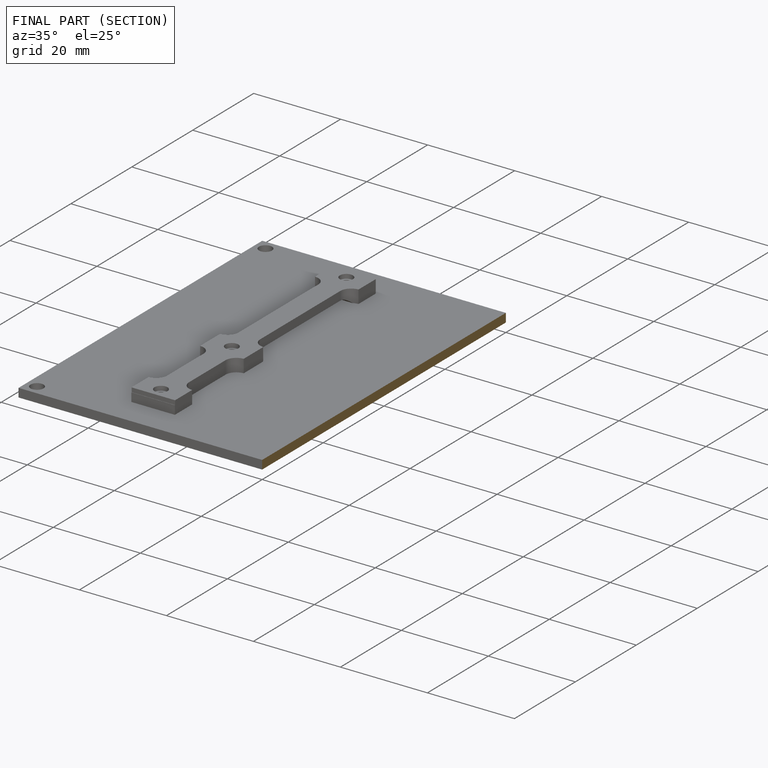
[diagram: finished part — half-section view (interior)]
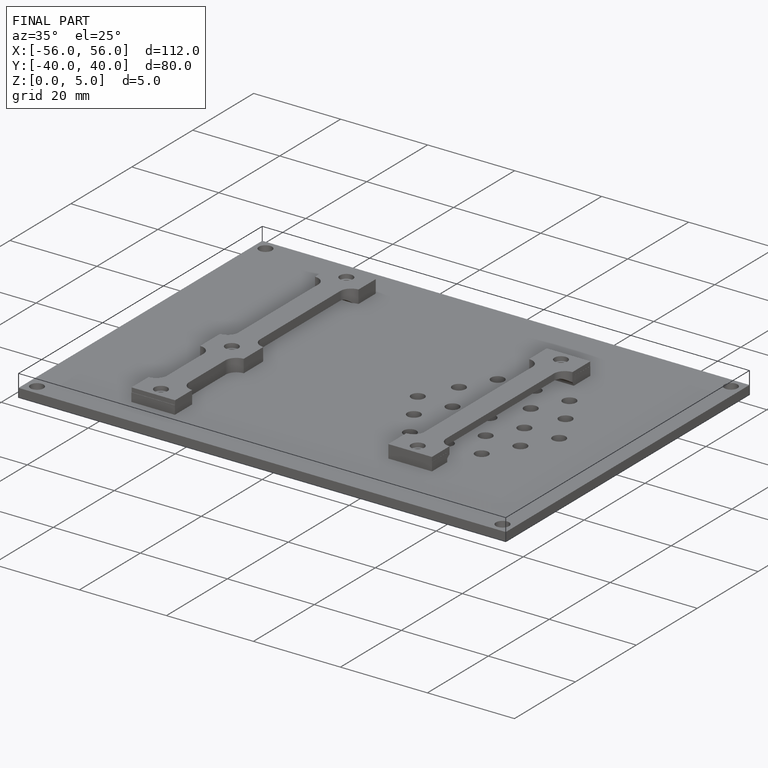
[diagram: finished part — iso view with bounding-box wireframe]
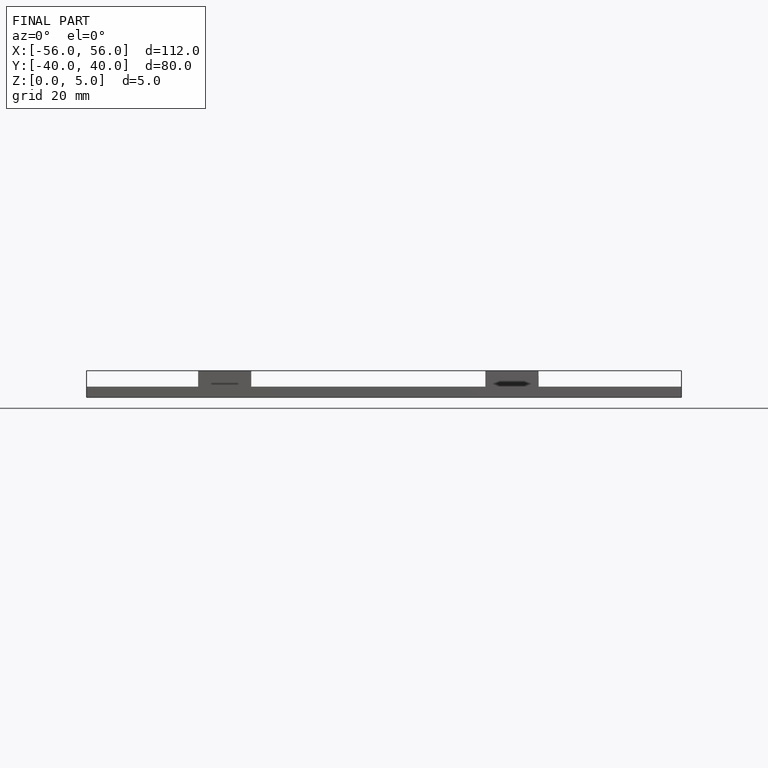
[diagram: finished part — front view with bounding-box wireframe]
